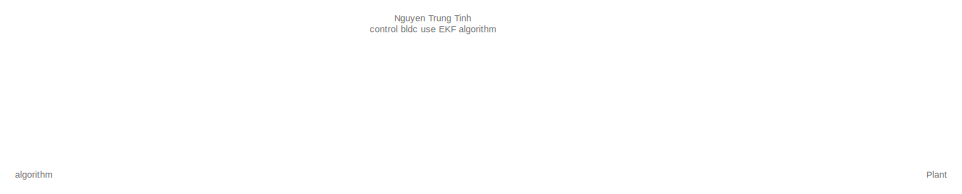
[diagram: root canvas - part 1/2, top left region]
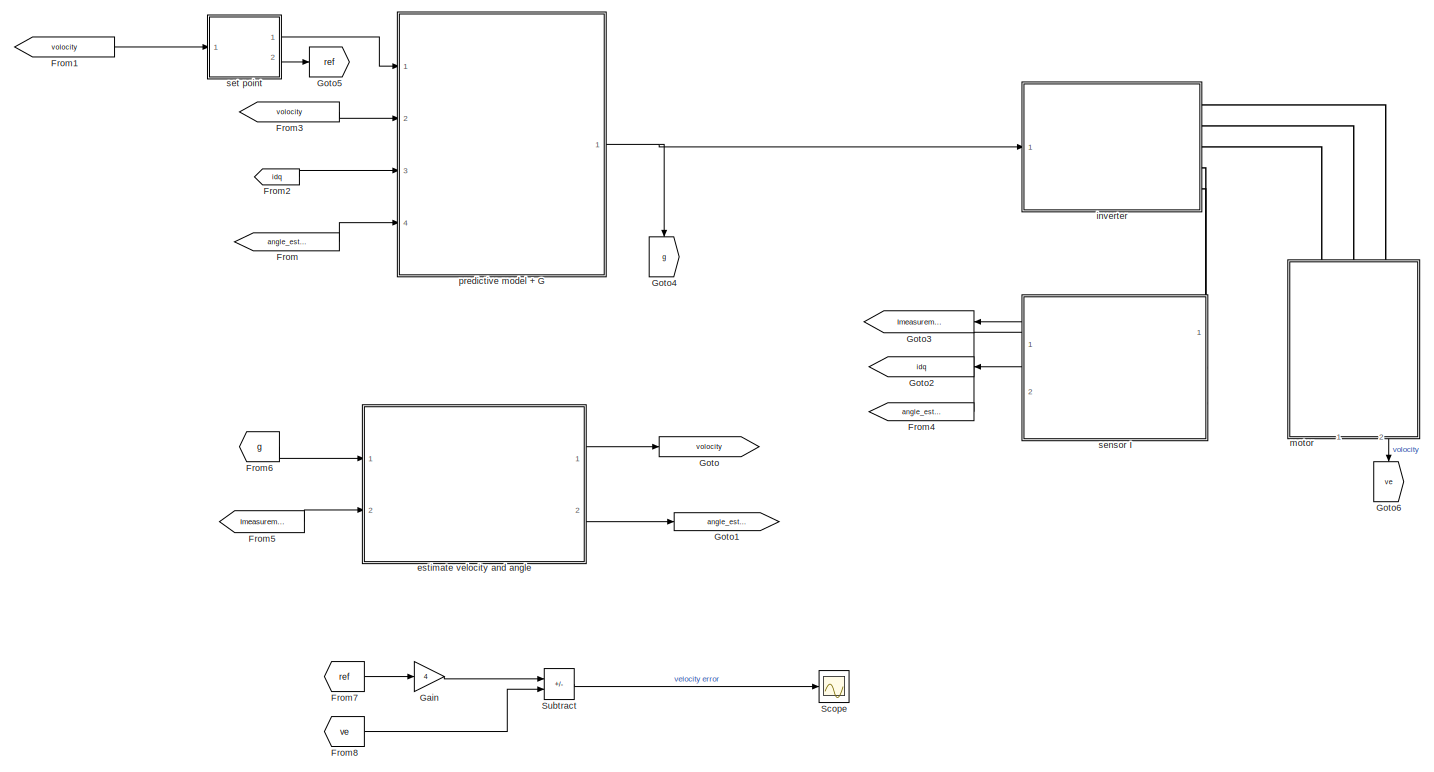
[diagram: root canvas - part 2/2, most of the canvas]
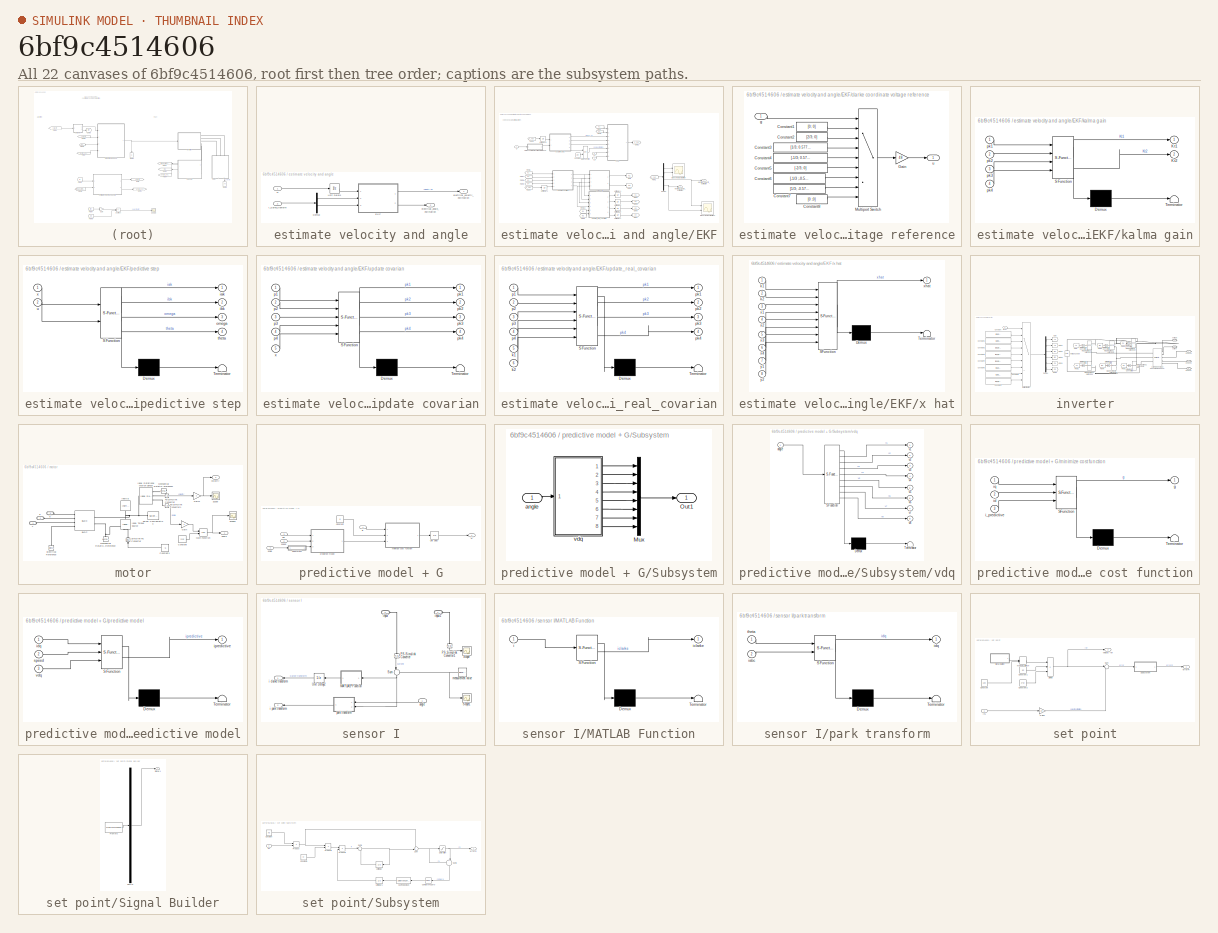
[diagram: thumbnail index - all 22 canvases of the model, root first then tree order]
MODEL slx_6bf9c4514606
KIND model
CONFIG AbsTol = auto
CONFIG EnableMultiTasking = off
CONFIG FixedStep = 50e-6
CONFIG MaxStep = auto
CONFIG MinStep = auto
CONFIG RelTol = 1e-3
CONFIG SampleTimeConstraint = Unconstrained
CONFIG Solver = FixedStepDiscrete
CONFIG SolverName = FixedStepDiscrete
CONFIG StartTime = 0.0
CONFIG StopTime = 10
BLOCK [From] From
  GotoTag = angle_estimate
BLOCK [From] From1
  GotoTag = volocity
BLOCK [From] From2
  GotoTag = idq
  NameLocation = top
BLOCK [From] From3
  GotoTag = volocity
BLOCK [From] From4
  GotoTag = angle_estimate
BLOCK [From] From5
  GotoTag = Imeasurement
  NameLocation = top
BLOCK [From] From6
  GotoTag = g
BLOCK [From] From7
  GotoTag = ref
BLOCK [From] From8
  GotoTag = ve
BLOCK [Gain] Gain
  Gain = 4
BLOCK [Goto] Goto
  GotoTag = volocity
BLOCK [Goto] Goto1
  GotoTag = angle_estimate
BLOCK [Goto] Goto2
  GotoTag = idq
  NameLocation = top
BLOCK [Goto] Goto3
  GotoTag = Imeasurement
  NameLocation = top
BLOCK [Goto] Goto4
  GotoTag = g
  NameLocation = left
BLOCK [Goto] Goto5
  GotoTag = ref
BLOCK [Goto] Goto6
  GotoTag = ve
  NameLocation = left
BLOCK [Scope] Scope
  Floating = off
  NumInputPorts = 1
  Ports = [1]
  ScopeSpecificationString = Simulink.scopes.TimeScopeBlockCfg('CurrentConfiguration', extmgr.ConfigurationSet(extmgr.Configuration('Core','General UI',true),extmgr.Configuration('Core','Source UI',true),extmgr.Configuration('Sources','WiredSimulink',true,'DataLoggingVariableName','ScopeData1'),extmgr.Configuration('Visuals','Time Domain',true),extmgr.Configuration('Tools','Plot Navigation',true),extmgr.Configuration('Tools',...<+40ch>
BLOCK [Sum] Subtract
  IconShape = rectangular
  Inputs = +-
  Ports = [2, 1]
BLOCK [SubSystem] estimate velocity and angle
  Ports = [2, 2]
  RequestExecContextInheritance = off
BLOCK [Demux] estimate velocity and angle/Demux
  Outputs = 2
  Ports = [1, 2]
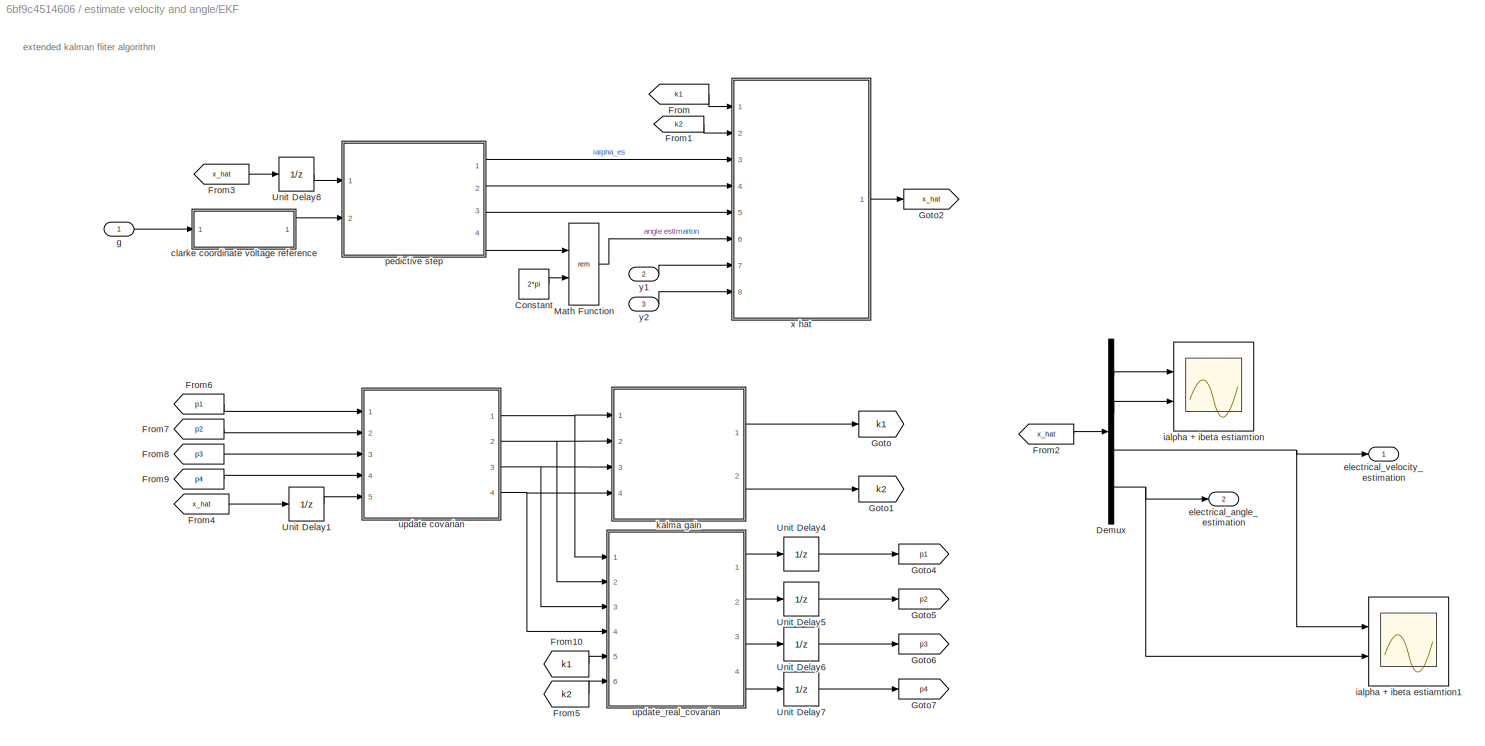
BLOCK [SubSystem] estimate velocity and angle/EKF
  Ports = [3, 2]
  RequestExecContextInheritance = off
BLOCK [Constant] estimate velocity and angle/EKF/Constant
  Value = 2*pi
BLOCK [Demux] estimate velocity and angle/EKF/Demux
  Ports = [1, 4]
BLOCK [From] estimate velocity and angle/EKF/From
  GotoTag = k1
BLOCK [From] estimate velocity and angle/EKF/From1
  GotoTag = k2
BLOCK [From] estimate velocity and angle/EKF/From10
  GotoTag = k1
BLOCK [From] estimate velocity and angle/EKF/From2
  GotoTag = x_hat
BLOCK [From] estimate velocity and angle/EKF/From3
  GotoTag = x_hat
BLOCK [From] estimate velocity and angle/EKF/From4
  GotoTag = x_hat
BLOCK [From] estimate velocity and angle/EKF/From5
  GotoTag = k2
BLOCK [From] estimate velocity and angle/EKF/From6
  GotoTag = p1
BLOCK [From] estimate velocity and angle/EKF/From7
  GotoTag = p2
BLOCK [From] estimate velocity and angle/EKF/From8
  GotoTag = p3
BLOCK [From] estimate velocity and angle/EKF/From9
  GotoTag = p4
BLOCK [Goto] estimate velocity and angle/EKF/Goto
  GotoTag = k1
BLOCK [Goto] estimate velocity and angle/EKF/Goto1
  GotoTag = k2
BLOCK [Goto] estimate velocity and angle/EKF/Goto2
  GotoTag = x_hat
BLOCK [Goto] estimate velocity and angle/EKF/Goto4
  GotoTag = p1
BLOCK [Goto] estimate velocity and angle/EKF/Goto5
  GotoTag = p2
BLOCK [Goto] estimate velocity and angle/EKF/Goto6
  GotoTag = p3
BLOCK [Goto] estimate velocity and angle/EKF/Goto7
  GotoTag = p4
BLOCK [Math] estimate velocity and angle/EKF/Math Function
  Operator = rem
  Ports = [2, 1]
BLOCK [UnitDelay] estimate velocity and angle/EKF/Unit Delay1
  HasFrameUpgradeWarning = on
  InitialCondition = [0 0 0 0]
  SampleTime = -1
BLOCK [UnitDelay] estimate velocity and angle/EKF/Unit Delay4
  HasFrameUpgradeWarning = on
  InitialCondition = [0.1;0;0;0]
  SampleTime = -1
BLOCK [UnitDelay] estimate velocity and angle/EKF/Unit Delay5
  HasFrameUpgradeWarning = on
  InitialCondition = [0; 0.2; 0; 0]
  SampleTime = -1
BLOCK [UnitDelay] estimate velocity and angle/EKF/Unit Delay6
  HasFrameUpgradeWarning = on
  InitialCondition = [0;0;0.5;0]
  SampleTime = -1
BLOCK [UnitDelay] estimate velocity and angle/EKF/Unit Delay7
  HasFrameUpgradeWarning = on
  InitialCondition = [0;0;0;0.02]
  SampleTime = -1
BLOCK [UnitDelay] estimate velocity and angle/EKF/Unit Delay8
  HasFrameUpgradeWarning = on
  InitialCondition = [0 0 0 0.01]
  SampleTime = -1
BLOCK [SubSystem] estimate velocity and angle/EKF/clarke coordinate voltage reference
  Ports = [1, 1]
  RequestExecContextInheritance = off
BLOCK [Constant] estimate velocity and angle/EKF/clarke coordinate voltage reference/Constant1
  Value = [0; 0]
BLOCK [Constant] estimate velocity and angle/EKF/clarke coordinate voltage reference/Constant2
  Value = [2/3; 0]
BLOCK [Constant] estimate velocity and angle/EKF/clarke coordinate voltage reference/Constant3
  Value = [1/3; 0.57735]
BLOCK [Constant] estimate velocity and angle/EKF/clarke coordinate voltage reference/Constant4
  Value = [-1/3; 0.57735]
BLOCK [Constant] estimate velocity and angle/EKF/clarke coordinate voltage reference/Constant5
  Value = [-2/3; 0]
BLOCK [Constant] estimate velocity and angle/EKF/clarke coordinate voltage reference/Constant6
  Value = [-1/3 ;-0.57735]
BLOCK [Constant] estimate velocity and angle/EKF/clarke coordinate voltage reference/Constant7
  Value = [1/3; -0.57735]
BLOCK [Constant] estimate velocity and angle/EKF/clarke coordinate voltage reference/Constant8
  Value = [0 ;0]
BLOCK [Gain] estimate velocity and angle/EKF/clarke coordinate voltage reference/Gain
  Gain = 48
BLOCK [MultiPortSwitch] estimate velocity and angle/EKF/clarke coordinate voltage reference/Multiport Switch
  InputSameDT = off
  Inputs = 8
  Ports = [9, 1]
  SaturateOnIntegerOverflow = off
BLOCK [Inport] estimate velocity and angle/EKF/clarke coordinate voltage reference/g
BLOCK [Outport] estimate velocity and angle/EKF/clarke coordinate voltage reference/u
BLOCK [Outport] estimate velocity and angle/EKF/electrical_angle_estimation
  Port = 2
BLOCK [Outport] estimate velocity and angle/EKF/electrical_velocity_estimation
BLOCK [Inport] estimate velocity and angle/EKF/g
BLOCK [Scope] estimate velocity and angle/EKF/ialpha + ibeta estiamtion
  Floating = off
  NumInputPorts = 2
  Ports = [2]
  ScopeSpecificationString = Simulink.scopes.TimeScopeBlockCfg('CurrentConfiguration', extmgr.ConfigurationSet(extmgr.Configuration('Core','General UI',true),extmgr.Configuration('Core','Source UI',true),extmgr.Configuration('Sources','WiredSimulink',true,'DataLoggingVariableName','ScopeData2'),extmgr.Configuration('Visuals','Time Domain',true,'SerializedDisplays',{struct('MinYLimReal','-2.81508','MaxYLimReal','2.16298','YLab...<+2176ch>
BLOCK [Scope] estimate velocity and angle/EKF/ialpha + ibeta estiamtion1
  Floating = off
  NumInputPorts = 2
  Ports = [2]
  ScopeSpecificationString = Simulink.scopes.TimeScopeBlockCfg('CurrentConfiguration', extmgr.ConfigurationSet(extmgr.Configuration('Core','General UI',true),extmgr.Configuration('Core','Source UI',true),extmgr.Configuration('Sources','WiredSimulink',true,'DataLoggingVariableName','ScopeData1'),extmgr.Configuration('Visuals','Time Domain',true,'SerializedDisplays',{struct('MinYLimReal','-96.57342','MaxYLimReal','869.1608','YL...<+2179ch>
BLOCK [SubSystem] estimate velocity and angle/EKF/kalma gain
  ErrorFcn = Stateflow.Translate.translate
  PermitHierarchicalResolution = ExplicitOnly
  Ports = [4, 2]
  RequestExecContextInheritance = off
  SFBlockType = MATLAB Function
  TreatAsAtomicUnit = on
BLOCK [Demux] estimate velocity and angle/EKF/kalma gain/ Demux 
  Outputs = 1
  Ports = [1, 1]
BLOCK [S-Function] estimate velocity and angle/EKF/kalma gain/ SFunction 
  EnableBusSupport = on
  FunctionName = sf_sfun
  PortCounts = [4 3]
  Ports = [4, 3]
  SFcnIsStateOwnerBlock = off
  SFunctionDeploymentMode = off
  Tag = Stateflow S-Function 6
BLOCK [Terminator] estimate velocity and angle/EKF/kalma gain/ Terminator 
BLOCK [Outport] estimate velocity and angle/EKF/kalma gain/Kt1
BLOCK [Outport] estimate velocity and angle/EKF/kalma gain/Kt2
  Port = 2
BLOCK [Inport] estimate velocity and angle/EKF/kalma gain/pk1
BLOCK [Inport] estimate velocity and angle/EKF/kalma gain/pk2
  Port = 2
BLOCK [Inport] estimate velocity and angle/EKF/kalma gain/pk3
  Port = 3
BLOCK [Inport] estimate velocity and angle/EKF/kalma gain/pk4
  Port = 4
BLOCK [SubSystem] estimate velocity and angle/EKF/pedictive step
  ErrorFcn = Stateflow.Translate.translate
  PermitHierarchicalResolution = ExplicitOnly
  Ports = [2, 4]
  RequestExecContextInheritance = off
  SFBlockType = MATLAB Function
  TreatAsAtomicUnit = on
BLOCK [Demux] estimate velocity and angle/EKF/pedictive step/ Demux 
  Outputs = 1
  Ports = [1, 1]
BLOCK [S-Function] estimate velocity and angle/EKF/pedictive step/ SFunction 
  EnableBusSupport = on
  FunctionName = sf_sfun
  PortCounts = [2 5]
  Ports = [2, 5]
  SFcnIsStateOwnerBlock = off
  SFunctionDeploymentMode = off
  Tag = Stateflow S-Function 7
BLOCK [Terminator] estimate velocity and angle/EKF/pedictive step/ Terminator 
BLOCK [Outport] estimate velocity and angle/EKF/pedictive step/iak
BLOCK [Outport] estimate velocity and angle/EKF/pedictive step/ibk
  Port = 2
BLOCK [Outport] estimate velocity and angle/EKF/pedictive step/omega
  Port = 3
BLOCK [Outport] estimate velocity and angle/EKF/pedictive step/theta
  Port = 4
BLOCK [Inport] estimate velocity and angle/EKF/pedictive step/u
  Port = 2
BLOCK [Inport] estimate velocity and angle/EKF/pedictive step/x
BLOCK [SubSystem] estimate velocity and angle/EKF/update covarian
  ErrorFcn = Stateflow.Translate.translate
  PermitHierarchicalResolution = ExplicitOnly
  Ports = [5, 4]
  RequestExecContextInheritance = off
  SFBlockType = MATLAB Function
  TreatAsAtomicUnit = on
BLOCK [Demux] estimate velocity and angle/EKF/update covarian/ Demux 
  Outputs = 1
  Ports = [1, 1]
BLOCK [S-Function] estimate velocity and angle/EKF/update covarian/ SFunction 
  EnableBusSupport = on
  FunctionName = sf_sfun
  PortCounts = [5 5]
  Ports = [5, 5]
  SFcnIsStateOwnerBlock = off
  SFunctionDeploymentMode = off
  Tag = Stateflow S-Function 5
BLOCK [Terminator] estimate velocity and angle/EKF/update covarian/ Terminator 
BLOCK [Inport] estimate velocity and angle/EKF/update covarian/p1
BLOCK [Inport] estimate velocity and angle/EKF/update covarian/p2
  Port = 2
BLOCK [Inport] estimate velocity and angle/EKF/update covarian/p3
  Port = 3
BLOCK [Inport] estimate velocity and angle/EKF/update covarian/p4
  Port = 4
BLOCK [Outport] estimate velocity and angle/EKF/update covarian/pk1
BLOCK [Outport] estimate velocity and angle/EKF/update covarian/pk2
  Port = 2
BLOCK [Outport] estimate velocity and angle/EKF/update covarian/pk3
  Port = 3
BLOCK [Outport] estimate velocity and angle/EKF/update covarian/pk4
  Port = 4
BLOCK [Inport] estimate velocity and angle/EKF/update covarian/x
  Port = 5
BLOCK [SubSystem] estimate velocity and angle/EKF/update_real_covarian
  ErrorFcn = Stateflow.Translate.translate
  PermitHierarchicalResolution = ExplicitOnly
  Ports = [6, 4]
  RequestExecContextInheritance = off
  SFBlockType = MATLAB Function
  TreatAsAtomicUnit = on
BLOCK [Demux] estimate velocity and angle/EKF/update_real_covarian/ Demux 
  Outputs = 1
  Ports = [1, 1]
BLOCK [S-Function] estimate velocity and angle/EKF/update_real_covarian/ SFunction 
  EnableBusSupport = on
  FunctionName = sf_sfun
  PortCounts = [6 5]
  Ports = [6, 5]
  SFcnIsStateOwnerBlock = off
  SFunctionDeploymentMode = off
  Tag = Stateflow S-Function 11
BLOCK [Terminator] estimate velocity and angle/EKF/update_real_covarian/ Terminator 
BLOCK [Inport] estimate velocity and angle/EKF/update_real_covarian/k1
  Port = 5
BLOCK [Inport] estimate velocity and angle/EKF/update_real_covarian/k2
  Port = 6
BLOCK [Inport] estimate velocity and angle/EKF/update_real_covarian/p1
BLOCK [Inport] estimate velocity and angle/EKF/update_real_covarian/p2
  Port = 2
BLOCK [Inport] estimate velocity and angle/EKF/update_real_covarian/p3
  Port = 3
BLOCK [Inport] estimate velocity and angle/EKF/update_real_covarian/p4
  Port = 4
BLOCK [Outport] estimate velocity and angle/EKF/update_real_covarian/pk1
BLOCK [Outport] estimate velocity and angle/EKF/update_real_covarian/pk2
  Port = 2
BLOCK [Outport] estimate velocity and angle/EKF/update_real_covarian/pk3
  Port = 3
BLOCK [Outport] estimate velocity and angle/EKF/update_real_covarian/pk4
  Port = 4
BLOCK [SubSystem] estimate velocity and angle/EKF/x hat
  ErrorFcn = Stateflow.Translate.translate
  PermitHierarchicalResolution = ExplicitOnly
  Ports = [8, 1]
  RequestExecContextInheritance = off
  SFBlockType = MATLAB Function
  TreatAsAtomicUnit = on
BLOCK [Demux] estimate velocity and angle/EKF/x hat/ Demux 
  Outputs = 1
  Ports = [1, 1]
BLOCK [S-Function] estimate velocity and angle/EKF/x hat/ SFunction 
  EnableBusSupport = on
  FunctionName = sf_sfun
  PortCounts = [8 2]
  Ports = [8, 2]
  SFcnIsStateOwnerBlock = off
  SFunctionDeploymentMode = off
  Tag = Stateflow S-Function 8
BLOCK [Terminator] estimate velocity and angle/EKF/x hat/ Terminator 
BLOCK [Inport] estimate velocity and angle/EKF/x hat/k1
BLOCK [Inport] estimate velocity and angle/EKF/x hat/k2
  Port = 2
BLOCK [Inport] estimate velocity and angle/EKF/x hat/x1
  Port = 3
BLOCK [Inport] estimate velocity and angle/EKF/x hat/x2
  Port = 4
BLOCK [Inport] estimate velocity and angle/EKF/x hat/x3
  Port = 5
BLOCK [Inport] estimate velocity and angle/EKF/x hat/x4
  Port = 6
BLOCK [Outport] estimate velocity and angle/EKF/x hat/xhat
BLOCK [Inport] estimate velocity and angle/EKF/x hat/y1
  Port = 7
BLOCK [Inport] estimate velocity and angle/EKF/x hat/y2
  Port = 8
BLOCK [Inport] estimate velocity and angle/EKF/y1
  Port = 2
BLOCK [Inport] estimate velocity and angle/EKF/y2
  Port = 3
BLOCK [Inport] estimate velocity and angle/G
BLOCK [UnitDelay] estimate velocity and angle/Unit Delay1
  HasFrameUpgradeWarning = on
  InitialCondition = 1
  SampleTime = -1
BLOCK [Outport] estimate velocity and angle/electrical_angle_estimation
  Port = 2
BLOCK [Outport] estimate velocity and angle/electrical_velocity_estimation
BLOCK [Inport] estimate velocity and angle/i_clarke_tranform
  Port = 2
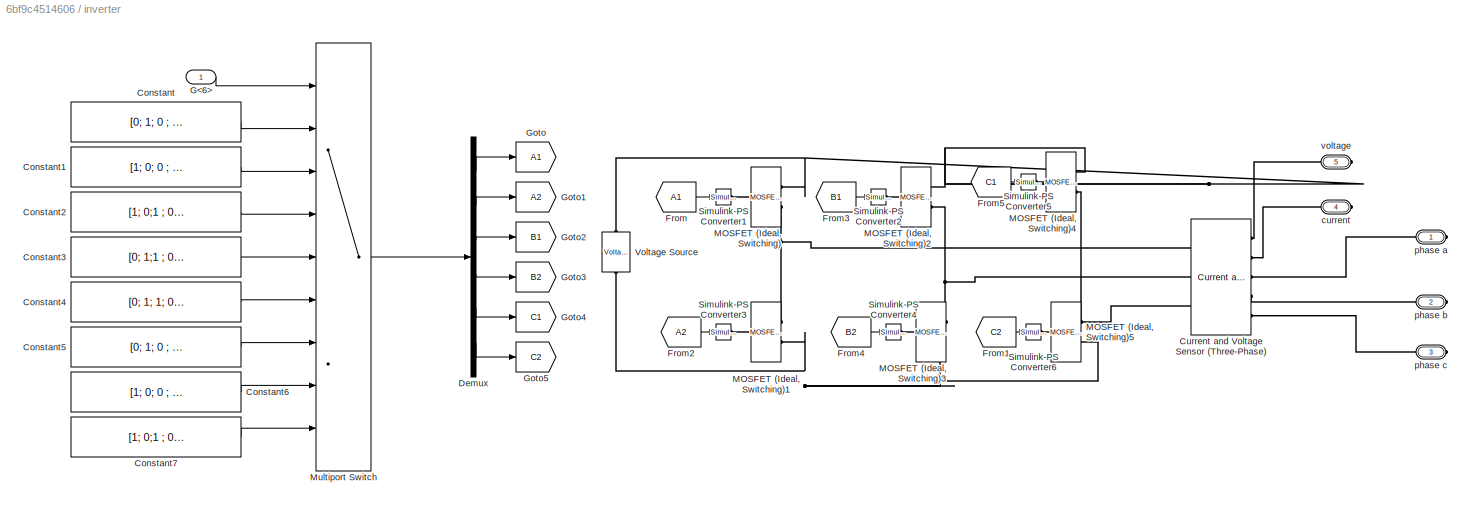
BLOCK [SubSystem] inverter
  PortSchema = {"entries":[{"content":{"sides":[{"content":{"connectorIds":["In1"]},"type":"ConnectorPlacement.EquallySpacedRectSide","uuid":"9f8e1654-e76f-4ccd-87ff-712360a9448c"},{"content":{"connectorIds":["RConn1","RConn2","RConn3"],"side":"RIGHT"},"type":"ConnectorPlacement.EquallySpacedRectSide","uuid":"1603b82b-d8dc-4962-8b2e-607a69af6851"},{"content":{"connectorIds":[],"side":"TOP"},"type":"ConnectorPlac...<+423ch>
  Ports = [1, 0, 0, 0, 0, 0, 5]
  RequestExecContextInheritance = off
BLOCK [Constant] inverter/Constant
  Value = [0; 1; 0 ; 1; 0; 1]
BLOCK [Constant] inverter/Constant1
  Value = [1; 0; 0 ; 1; 0; 1]
BLOCK [Constant] inverter/Constant2
  Value = [1; 0;1 ; 0; 0; 1]
BLOCK [Constant] inverter/Constant3
  Value = [0; 1;1 ; 0; 0; 1]
BLOCK [Constant] inverter/Constant4
  Value = [0; 1; 1; 0; 1; 0]
BLOCK [Constant] inverter/Constant5
  Value = [0; 1; 0 ; 1; 1; 0]
BLOCK [Constant] inverter/Constant6
  Value = [1; 0; 0 ; 1; 1; 0]
BLOCK [Constant] inverter/Constant7
  Value = [1; 0;1 ; 0; 1; 0]
BLOCK [Reference] inverter/Current and Voltage Sensor (Three-Phase)  REF=ee_lib/Sensors &
Transducers/Current and Voltage
Sensor (Three-Phase)
  Ports = [0, 0, 0, 0, 0, 3, 5]
  SourceBlock = ee_lib/Sensors &\nTransducers/Current and Voltage\nSensor (Three-Phase)
  SourceProductBaseCode = PS
  SourceType = Current and Voltage\nSensor (Three-Phase)
BLOCK [Demux] inverter/Demux
  Outputs = 6
  Ports = [1, 6]
BLOCK [From] inverter/From
  GotoTag = A1
BLOCK [From] inverter/From1
  GotoTag = C2
BLOCK [From] inverter/From2
  GotoTag = A2
BLOCK [From] inverter/From3
  GotoTag = B1
BLOCK [From] inverter/From4
  GotoTag = B2
BLOCK [From] inverter/From5
  GotoTag = C1
BLOCK [Inport] inverter/G<6>
BLOCK [Goto] inverter/Goto
  GotoTag = A1
BLOCK [Goto] inverter/Goto1
  GotoTag = A2
BLOCK [Goto] inverter/Goto2
  GotoTag = B1
BLOCK [Goto] inverter/Goto3
  GotoTag = B2
BLOCK [Goto] inverter/Goto4
  GotoTag = C1
BLOCK [Goto] inverter/Goto5
  GotoTag = C2
BLOCK [Reference] inverter/MOSFET (Ideal, Switching)  REF=ee_lib/Semiconductors &
Converters/MOSFET
(Ideal,
Switching)
  Ports = [0, 0, 0, 0, 0, 1, 2]
  SourceBlock = ee_lib/Semiconductors &\nConverters/MOSFET\n(Ideal,\nSwitching)
  SourceProductBaseCode = PS
  SourceType = MOSFET\n(Ideal,\nSwitching)
BLOCK [Reference] inverter/MOSFET (Ideal, Switching)1  REF=ee_lib/Semiconductors &
Converters/MOSFET
(Ideal,
Switching)
  Ports = [0, 0, 0, 0, 0, 1, 2]
  SourceBlock = ee_lib/Semiconductors &\nConverters/MOSFET\n(Ideal,\nSwitching)
  SourceProductBaseCode = PS
  SourceType = MOSFET\n(Ideal,\nSwitching)
BLOCK [Reference] inverter/MOSFET (Ideal, Switching)2  REF=ee_lib/Semiconductors &
Converters/MOSFET
(Ideal,
Switching)
  Ports = [0, 0, 0, 0, 0, 1, 2]
  SourceBlock = ee_lib/Semiconductors &\nConverters/MOSFET\n(Ideal,\nSwitching)
  SourceProductBaseCode = PS
  SourceType = MOSFET\n(Ideal,\nSwitching)
BLOCK [Reference] inverter/MOSFET (Ideal, Switching)3  REF=ee_lib/Semiconductors &
Converters/MOSFET
(Ideal,
Switching)
  Ports = [0, 0, 0, 0, 0, 1, 2]
  SourceBlock = ee_lib/Semiconductors &\nConverters/MOSFET\n(Ideal,\nSwitching)
  SourceProductBaseCode = PS
  SourceType = MOSFET\n(Ideal,\nSwitching)
BLOCK [Reference] inverter/MOSFET (Ideal, Switching)4  REF=ee_lib/Semiconductors &
Converters/MOSFET
(Ideal,
Switching)
  Ports = [0, 0, 0, 0, 0, 1, 2]
  SourceBlock = ee_lib/Semiconductors &\nConverters/MOSFET\n(Ideal,\nSwitching)
  SourceProductBaseCode = PS
  SourceType = MOSFET\n(Ideal,\nSwitching)
BLOCK [Reference] inverter/MOSFET (Ideal, Switching)5  REF=ee_lib/Semiconductors &
Converters/MOSFET
(Ideal,
Switching)
  Ports = [0, 0, 0, 0, 0, 1, 2]
  SourceBlock = ee_lib/Semiconductors &\nConverters/MOSFET\n(Ideal,\nSwitching)
  SourceProductBaseCode = PS
  SourceType = MOSFET\n(Ideal,\nSwitching)
BLOCK [MultiPortSwitch] inverter/Multiport Switch
  InputSameDT = off
  Inputs = 8
  Ports = [9, 1]
  SaturateOnIntegerOverflow = off
BLOCK [Reference] inverter/Simulink-PS Converter1  REF=nesl_utility/Simulink-PS
Converter
  Ports = [1, 0, 0, 0, 0, 0, 1]
  SourceBlock = nesl_utility/Simulink-PS\nConverter
  SourceProductBaseCode = SS
  SourceType = Simulink-PS\nConverter
BLOCK [Reference] inverter/Simulink-PS Converter2  REF=nesl_utility/Simulink-PS
Converter
  Ports = [1, 0, 0, 0, 0, 0, 1]
  SourceBlock = nesl_utility/Simulink-PS\nConverter
  SourceProductBaseCode = SS
  SourceType = Simulink-PS\nConverter
BLOCK [Reference] inverter/Simulink-PS Converter3  REF=nesl_utility/Simulink-PS
Converter
  Ports = [1, 0, 0, 0, 0, 0, 1]
  SourceBlock = nesl_utility/Simulink-PS\nConverter
  SourceProductBaseCode = SS
  SourceType = Simulink-PS\nConverter
BLOCK [Reference] inverter/Simulink-PS Converter4  REF=nesl_utility/Simulink-PS
Converter
  Ports = [1, 0, 0, 0, 0, 0, 1]
  SourceBlock = nesl_utility/Simulink-PS\nConverter
  SourceProductBaseCode = SS
  SourceType = Simulink-PS\nConverter
BLOCK [Reference] inverter/Simulink-PS Converter5  REF=nesl_utility/Simulink-PS
Converter
  Ports = [1, 0, 0, 0, 0, 0, 1]
  SourceBlock = nesl_utility/Simulink-PS\nConverter
  SourceProductBaseCode = SS
  SourceType = Simulink-PS\nConverter
BLOCK [Reference] inverter/Simulink-PS Converter6  REF=nesl_utility/Simulink-PS
Converter
  Ports = [1, 0, 0, 0, 0, 0, 1]
  SourceBlock = nesl_utility/Simulink-PS\nConverter
  SourceProductBaseCode = SS
  SourceType = Simulink-PS\nConverter
BLOCK [Reference] inverter/Voltage Source  REF=ee_lib/Sources/Voltage Source
  NameLocation = right
  Ports = [0, 0, 0, 0, 0, 1, 1]
  SourceBlock = ee_lib/Sources/Voltage Source
  SourceProductBaseCode = PS
  SourceType = Voltage Source
BLOCK [PMIOPort] inverter/current
  Port = 4
  Side = Right
BLOCK [PMIOPort] inverter/phase a
  Side = Right
BLOCK [PMIOPort] inverter/phase b
  Port = 2
  Side = Right
BLOCK [PMIOPort] inverter/phase c
  Port = 3
  Side = Right
BLOCK [PMIOPort] inverter/voltage
  Port = 5
  Side = Right
BLOCK [SubSystem] motor
  NameLocation = left
  Ports = [0, 2, 0, 0, 0, 3]
  RequestExecContextInheritance = off
BLOCK [Reference] motor/BLDC  REF=ee_lib/Electromechanical/Permanent Magnet/BLDC
  Ports = [0, 0, 0, 0, 0, 4, 2]
  SourceBlock = ee_lib/Electromechanical/Permanent Magnet/BLDC
  SourceProductBaseCode = PS
  SourceType = BLDC
BLOCK [Constant] motor/Constant
  Value = 2*pi
BLOCK [Constant] motor/Constant1
  NameLocation = top
  Value = -5
BLOCK [Reference] motor/Electrical Reference  REF=fl_lib/Electrical/Electrical Elements/Electrical Reference
  NameLocation = right
  Ports = [0, 0, 0, 0, 0, 1]
  SourceBlock = fl_lib/Electrical/Electrical Elements/Electrical Reference
  SourceProductBaseCode = SS
  SourceType = Electrical Reference
BLOCK [Gain] motor/Gain
  Gain = 4
BLOCK [Gain] motor/Gain1
  Gain = 4
BLOCK [Reference] motor/Ideal Rotational Motion Sensor  REF=fl_lib/Mechanical/Mechanical Sensors/Ideal Rotational
Motion Sensor
  Ports = [0, 0, 0, 0, 0, 1, 3]
  SourceBlock = fl_lib/Mechanical/Mechanical Sensors/Ideal Rotational\nMotion Sensor
  SourceProductBaseCode = SS
  SourceType = Ideal Rotational\nMotion Sensor
BLOCK [Reference] motor/Ideal Torque Source  REF=fl_lib/Mechanical/Mechanical Sources/Ideal Torque Source
  NameLocation = right
  Ports = [0, 0, 0, 0, 0, 1, 2]
  SourceBlock = fl_lib/Mechanical/Mechanical Sources/Ideal Torque Source
  SourceProductBaseCode = SS
  SourceType = Ideal Torque Source
BLOCK [Reference] motor/Inertia  REF=fl_lib/Mechanical/Rotational Elements/Inertia
  NameLocation = left
  Ports = [0, 0, 0, 0, 0, 1]
  SourceBlock = fl_lib/Mechanical/Rotational Elements/Inertia
  SourceProductBaseCode = SS
  SourceType = Inertia
BLOCK [Math] motor/Math Function
  Operator = rem
  Ports = [2, 1]
BLOCK [Reference] motor/Mechanical Rotational Reference  REF=fl_lib/Mechanical/Rotational Elements/Mechanical
Rotational Reference
  NameLocation = right
  Ports = [0, 0, 0, 0, 0, 1]
  SourceBlock = fl_lib/Mechanical/Rotational Elements/Mechanical\nRotational Reference
  SourceProductBaseCode = SS
  SourceType = Mechanical\nRotational Reference
BLOCK [Reference] motor/Mechanical Rotational Reference1  REF=fl_lib/Mechanical/Rotational Elements/Mechanical
Rotational Reference
  NameLocation = top
  Ports = [0, 0, 0, 0, 0, 1]
  SourceBlock = fl_lib/Mechanical/Rotational Elements/Mechanical\nRotational Reference
  SourceProductBaseCode = SS
  SourceType = Mechanical\nRotational Reference
BLOCK [Reference] motor/PS-Simulink Converter  REF=nesl_utility/PS-Simulink
Converter
  Ports = [0, 1, 0, 0, 0, 1]
  SourceBlock = nesl_utility/PS-Simulink\nConverter
  SourceProductBaseCode = SS
  SourceType = PS-Simulink\nConverter
BLOCK [Reference] motor/PS-Simulink Converter1  REF=nesl_utility/PS-Simulink
Converter
  Ports = [0, 1, 0, 0, 0, 1]
  SourceBlock = nesl_utility/PS-Simulink\nConverter
  SourceProductBaseCode = SS
  SourceType = PS-Simulink\nConverter
BLOCK [Scope] motor/Scope
  Floating = off
  NumInputPorts = 1
  Ports = [1]
  ScopeSpecificationString = Simulink.scopes.TimeScopeBlockCfg('CurrentConfiguration', extmgr.ConfigurationSet(extmgr.Configuration('Core','General UI',true,'FigureColor',[1 1 1]),extmgr.Configuration('Core','Source UI',true),extmgr.Configuration('Sources','WiredSimulink',true),extmgr.Configuration('Visuals','Time Domain',true,'SerializedDisplays',{struct('MinYLimReal','-111.59014','MaxYLimReal','50.54235','YLabelReal','','Mi...<+1530ch>
BLOCK [Scope] motor/Scope1
  Floating = off
  NumInputPorts = 1
  Ports = [1]
  ScopeSpecificationString = Simulink.scopes.TimeScopeBlockCfg('CurrentConfiguration', extmgr.ConfigurationSet(extmgr.Configuration('Core','General UI',true,'FigureColor',[1 1 1]),extmgr.Configuration('Core','Source UI',true),extmgr.Configuration('Sources','WiredSimulink',true,'DataLoggingVariableName','ScopeData1'),extmgr.Configuration('Visuals','Time Domain',true,'SerializedDisplays',{struct('MinYLimReal','-0.78545','MaxYLi...<+1565ch>
BLOCK [Reference] motor/Simulink-PS Converter  REF=nesl_utility/Simulink-PS
Converter
  NameLocation = right
  Ports = [1, 0, 0, 0, 0, 0, 1]
  SourceBlock = nesl_utility/Simulink-PS\nConverter
  SourceProductBaseCode = SS
  SourceType = Simulink-PS\nConverter
BLOCK [Reference] motor/Solver Configuration  REF=nesl_utility/Solver
Configuration
  NameLocation = top
  Ports = [0, 0, 0, 0, 0, 0, 1]
  SourceBlock = nesl_utility/Solver\nConfiguration
  SourceProductBaseCode = SS
  SourceType = Solver\nConfiguration
BLOCK [PMIOPort] motor/a
  Port = 3
  Side = Left
BLOCK [Outport] motor/angle
BLOCK [PMIOPort] motor/b
  Port = 2
  Side = Left
BLOCK [PMIOPort] motor/c
  Side = Left
BLOCK [Outport] motor/volocity
  Port = 2
BLOCK [SubSystem] predictive model + G
  Ports = [4, 1]
  RequestExecContextInheritance = off
BLOCK [Constant] predictive model + G/Constant
  Value = 0
BLOCK [Outport] predictive model + G/G
BLOCK [SubSystem] predictive model + G/Subsystem
  Ports = [1, 1]
  RequestExecContextInheritance = off
BLOCK [Mux] predictive model + G/Subsystem/Mux
  DisplayOption = bar
  Inputs = 8
  Ports = [8, 1]
BLOCK [Outport] predictive model + G/Subsystem/Out1
BLOCK [Inport] predictive model + G/Subsystem/angle
BLOCK [SubSystem] predictive model + G/Subsystem/vdq
  ErrorFcn = Stateflow.Translate.translate
  PermitHierarchicalResolution = ExplicitOnly
  Ports = [1, 8]
  RequestExecContextInheritance = off
  SFBlockType = MATLAB Function
  TreatAsAtomicUnit = on
BLOCK [Demux] predictive model + G/Subsystem/vdq/ Demux 
  Outputs = 1
  Ports = [1, 1]
BLOCK [S-Function] predictive model + G/Subsystem/vdq/ SFunction 
  EnableBusSupport = on
  FunctionName = sf_sfun
  PortCounts = [1 9]
  Ports = [1, 9]
  SFcnIsStateOwnerBlock = off
  SFunctionDeploymentMode = off
  Tag = Stateflow S-Function 9
BLOCK [Terminator] predictive model + G/Subsystem/vdq/ Terminator 
BLOCK [Inport] predictive model + G/Subsystem/vdq/angle
BLOCK [Outport] predictive model + G/Subsystem/vdq/v1
BLOCK [Outport] predictive model + G/Subsystem/vdq/v2
  Port = 2
BLOCK [Outport] predictive model + G/Subsystem/vdq/v3
  Port = 3
BLOCK [Outport] predictive model + G/Subsystem/vdq/v4
  Port = 4
BLOCK [Outport] predictive model + G/Subsystem/vdq/v5
  Port = 5
BLOCK [Outport] predictive model + G/Subsystem/vdq/v6
  Port = 6
BLOCK [Outport] predictive model + G/Subsystem/vdq/v7
  Port = 7
BLOCK [Outport] predictive model + G/Subsystem/vdq/v8
  Port = 8
BLOCK [UnitDelay] predictive model + G/Unit Delay
  HasFrameUpgradeWarning = on
  InitialCondition = 1
  SampleTime = -1
BLOCK [Inport] predictive model + G/angle
  Port = 4
BLOCK [Inport] predictive model + G/idq
  Port = 3
BLOCK [Inport] predictive model + G/iq
BLOCK [SubSystem] predictive model + G/minimize cost function
  ErrorFcn = Stateflow.Translate.translate
  PermitHierarchicalResolution = ExplicitOnly
  Ports = [3, 1]
  RequestExecContextInheritance = off
  SFBlockType = MATLAB Function
  TreatAsAtomicUnit = on
BLOCK [Demux] predictive model + G/minimize cost function/ Demux 
  Outputs = 1
  Ports = [1, 1]
BLOCK [S-Function] predictive model + G/minimize cost function/ SFunction 
  EnableBusSupport = on
  FunctionName = sf_sfun
  PortCounts = [3 2]
  Ports = [3, 2]
  SFcnIsStateOwnerBlock = off
  SFunctionDeploymentMode = off
  Tag = Stateflow S-Function 2
BLOCK [Terminator] predictive model + G/minimize cost function/ Terminator 
BLOCK [Outport] predictive model + G/minimize cost function/g
BLOCK [Inport] predictive model + G/minimize cost function/i_predictive
  Port = 3
BLOCK [Inport] predictive model + G/minimize cost function/id
  Port = 2
BLOCK [Inport] predictive model + G/minimize cost function/iq
BLOCK [SubSystem] predictive model + G/predictive model
  ErrorFcn = Stateflow.Translate.translate
  PermitHierarchicalResolution = ExplicitOnly
  Ports = [3, 1]
  RequestExecContextInheritance = off
  SFBlockType = MATLAB Function
  TreatAsAtomicUnit = on
BLOCK [Demux] predictive model + G/predictive model/ Demux 
  Outputs = 1
  Ports = [1, 1]
BLOCK [S-Function] predictive model + G/predictive model/ SFunction 
  EnableBusSupport = on
  FunctionName = sf_sfun
  PortCounts = [3 2]
  Ports = [3, 2]
  SFcnIsStateOwnerBlock = off
  SFunctionDeploymentMode = off
  Tag = Stateflow S-Function 1
BLOCK [Terminator] predictive model + G/predictive model/ Terminator 
BLOCK [Inport] predictive model + G/predictive model/idq
BLOCK [Outport] predictive model + G/predictive model/ipredictive
BLOCK [Inport] predictive model + G/predictive model/speed
  Port = 2
BLOCK [Inport] predictive model + G/predictive model/vdq
  Port = 3
BLOCK [Inport] predictive model + G/speed
  Port = 2
BLOCK [SubSystem] sensor I
  PortSchema = {"entries":[{"content":{"sides":[{"content":{"connectorIds":[]},"type":"ConnectorPlacement.EquallySpacedRectSide","uuid":"0a592258-b95b-4330-8c63-2a9e4347ecac"},{"content":{"connectorIds":["Out1","Out2","In1"],"side":"RIGHT"},"type":"ConnectorPlacement.EquallySpacedRectSide","uuid":"44663962-0eca-4dc4-9145-5c0dbec9ec3a"},{"content":{"connectorIds":["LConn1","LConn2"],"side":"TOP"},"type":"Connecto...<+267ch>
  Ports = [1, 2, 0, 0, 0, 2]
  RequestExecContextInheritance = off
BLOCK [Outport] sensor I/ i clarke transform
  NameLocation = left
BLOCK [SubSystem] sensor I/MATLAB Function
  ErrorFcn = Stateflow.Translate.translate
  NameLocation = top
  PermitHierarchicalResolution = ExplicitOnly
  Ports = [1, 1]
  RequestExecContextInheritance = off
  SFBlockType = MATLAB Function
  TreatAsAtomicUnit = on
BLOCK [Demux] sensor I/MATLAB Function/ Demux 
  Outputs = 1
  Ports = [1, 1]
BLOCK [S-Function] sensor I/MATLAB Function/ SFunction 
  EnableBusSupport = on
  FunctionName = sf_sfun
  PortCounts = [1 2]
  Ports = [1, 2]
  SFcnIsStateOwnerBlock = off
  SFunctionDeploymentMode = off
  Tag = Stateflow S-Function 12
BLOCK [Terminator] sensor I/MATLAB Function/ Terminator 
BLOCK [Inport] sensor I/MATLAB Function/i
BLOCK [Outport] sensor I/MATLAB Function/iclarke
BLOCK [Reference] sensor I/PS-Simulink Converter  REF=nesl_utility/PS-Simulink
Converter
  NameLocation = left
  Ports = [0, 1, 0, 0, 0, 1]
  SourceBlock = nesl_utility/PS-Simulink\nConverter
  SourceProductBaseCode = SS
  SourceType = PS-Simulink\nConverter
BLOCK [Reference] sensor I/PS-Simulink Converter1  REF=nesl_utility/PS-Simulink
Converter
  NameLocation = left
  Ports = [0, 1, 0, 0, 0, 1]
  SourceBlock = nesl_utility/PS-Simulink\nConverter
  SourceProductBaseCode = SS
  SourceType = PS-Simulink\nConverter
BLOCK [Scope] sensor I/Scope
  Floating = off
  NumInputPorts = 1
  Ports = [1]
  ScopeSpecificationString = Simulink.scopes.TimeScopeBlockCfg('CurrentConfiguration', extmgr.ConfigurationSet(extmgr.Configuration('Core','General UI',true),extmgr.Configuration('Core','Source UI',true),extmgr.Configuration('Sources','WiredSimulink',true,'DataLoggingVariableName','ScopeData1'),extmgr.Configuration('Visuals','Time Domain',true,'SerializedDisplays',{struct('MinYLimReal','-0.00000000000000026','MaxYLimReal','0....<+1614ch>
BLOCK [Scope] sensor I/Scope1
  Floating = off
  NumInputPorts = 1
  Ports = [1]
  ScopeSpecificationString = Simulink.scopes.TimeScopeBlockCfg('CurrentConfiguration', extmgr.ConfigurationSet(extmgr.Configuration('Core','General UI',true),extmgr.Configuration('Core','Source UI',true),extmgr.Configuration('Sources','WiredSimulink',true,'DataLoggingVariableName','ScopeData1'),extmgr.Configuration('Visuals','Time Domain',true,'SerializedDisplays',{struct('MinYLimReal','-0.55947','MaxYLimReal','0.55079','YLab...<+1449ch>
BLOCK [Sum] sensor I/Sum
  Inputs = |++
  NameLocation = left
  Ports = [2, 1]
BLOCK [UnitDelay] sensor I/Unit Delay2
  HasFrameUpgradeWarning = on
  NameLocation = top
  SampleTime = -1
BLOCK [Inport] sensor I/angle
  NameLocation = top
BLOCK [Outport] sensor I/i park transform
  Port = 2
BLOCK [PMIOPort] sensor I/input
  Port = 2
  Side = Left
BLOCK [PMIOPort] sensor I/input1
  Side = Left
BLOCK [Reference] sensor I/measurement noise  REF=simulink/Sources/Band-Limited
White Noise
  NameLocation = top
  Ports = [0, 1]
  SourceBlock = simulink/Sources/Band-Limited\nWhite Noise
  SourceProductBaseCode = SL
  SourceType = Band-Limited White Noise.
BLOCK [SubSystem] sensor I/park transform
  ErrorFcn = Stateflow.Translate.translate
  NameLocation = top
  PermitHierarchicalResolution = ExplicitOnly
  Ports = [2, 1]
  RequestExecContextInheritance = off
  SFBlockType = MATLAB Function
  TreatAsAtomicUnit = on
BLOCK [Demux] sensor I/park transform/ Demux 
  Outputs = 1
  Ports = [1, 1]
BLOCK [S-Function] sensor I/park transform/ SFunction 
  EnableBusSupport = on
  FunctionName = sf_sfun
  PortCounts = [2 2]
  Ports = [2, 2]
  SFcnIsStateOwnerBlock = off
  SFunctionDeploymentMode = off
  Tag = Stateflow S-Function 4
BLOCK [Terminator] sensor I/park transform/ Terminator 
BLOCK [Inport] sensor I/park transform/iabc
  Port = 2
BLOCK [Outport] sensor I/park transform/idq
BLOCK [Inport] sensor I/park transform/theta
BLOCK [SubSystem] set point
  Ports = [1, 2]
  RequestExecContextInheritance = off
BLOCK [Constant] set point/Constant
  Value = 100
BLOCK [Constant] set point/Constant1
  Value = 60
BLOCK [Constant] set point/Constant2
  Value = 2*pi
BLOCK [Product] set point/Divide
  Inputs = */*
  Ports = [3, 1]
BLOCK [Gain] set point/Gain1
  Gain = 1/4
BLOCK [Inport] set point/In1
BLOCK [ManualSwitch] set point/Manual Switch
BLOCK [SubSystem] set point/Signal Builder
  ClipboardFcn = sigbuilder_block('clipboard');
  CloseFcn = sigbuilder_block('close');
  ContinueFcn = sigbuilder_block('continue');
  CopyFcn = sigbuilder_block('copy');
  DeleteFcn = sigbuilder_block('delete');
  LoadFcn = sigbuilder_block('load');
  MaskHideContents = on
  ModelCloseFcn = sigbuilder_block('modelClose');
  NameChangeFcn = sigbuilder_block('namechange');
  OpenFcn = sigbuilder_block('open',[5.4 30 1141.2 522.6 ]);
  PauseFcn = sigbuilder_block('pause');
  Ports = [0, 1]
  PreSaveFcn = sigbuilder_block('preSave');
  RequestExecContextInheritance = off
  StartFcn = sigbuilder_block('start');
  StopFcn = sigbuilder_block('stop');
  Tag = STV Subsys
BLOCK [Demux] set point/Signal Builder/Demux
  DisplayOption = none
  Outputs = 1
  Ports = [1, 1]
  Tag = STV Demux
BLOCK [FromWorkspace] set point/Signal Builder/FromWs
  Tag = STV FromWs
  VariableName = tuvar
BLOCK [Outport] set point/Signal Builder/Signal 1
  Tag = STV Outport
BLOCK [SubSystem] set point/Subsystem
  Ports = [1, 1]
  RequestExecContextInheritance = off
BLOCK [DataTypeConversion] set point/Subsystem/Cast To Boolean
  NameLocation = top
  OutDataTypeStr = double
  RndMeth = Floor
  SaturateOnIntegerOverflow = off
BLOCK [Reference] set point/Subsystem/Compare To Zero  REF=simulink/Logic and Bit
Operations/Compare
To Zero
  NameLocation = top
  Ports = [1, 1]
  SourceBlock = simulink/Logic and Bit\nOperations/Compare\nTo Zero
  SourceProductBaseCode = SL
  SourceType = Compare To Zero
BLOCK [Constant] set point/Subsystem/Constant
  Value = Kp
BLOCK [Constant] set point/Subsystem/Constant1
  Value = Ki
BLOCK [Inport] set point/Subsystem/In1
BLOCK [Product] set point/Subsystem/Product
  Ports = [2, 1]
BLOCK [Product] set point/Subsystem/Product1
  Ports = [2, 1]
BLOCK [Product] set point/Subsystem/Product2
  Ports = [2, 1]
BLOCK [Saturate] set point/Subsystem/Saturation
  LinearizeAsGain = off
  LowerLimit = -10
  UpperLimit = 10
BLOCK [Sum] set point/Subsystem/Sum
  Inputs = ++|
  Ports = [2, 1]
BLOCK [Sum] set point/Subsystem/Sum1
  Inputs = |++
  Ports = [2, 1]
BLOCK [Sum] set point/Subsystem/Sum2
  Inputs = +-|
  NameLocation = left
  Ports = [2, 1]
BLOCK [UnitDelay] set point/Subsystem/Unit Delay
  HasFrameUpgradeWarning = on
  NameLocation = top
  SampleTime = -1
BLOCK [UnitDelay] set point/Subsystem/Unit Delay1
  HasFrameUpgradeWarning = on
  InitialCondition = 1
  NameLocation = top
  SampleTime = -1
BLOCK [Outport] set point/Subsystem/errorPI
BLOCK [Sum] set point/Sum
  Inputs = |+-
  Ports = [2, 1]
BLOCK [Outport] set point/errorPI
BLOCK [Outport] set point/velocity ref
  Port = 2
ANNOTATION (root): Nguyen Trung Tinh control bldc use EKF algorithm
ANNOTATION (root): Plant
ANNOTATION (root): algorithm
ANNOTATION estimate velocity and angle/EKF: extended kalman fliter algorithm
LINE From1:1 -> set point:1
LINE From2:1 -> predictive model + G:3
LINE From3:1 -> predictive model + G:2
LINE From4:1 -> sensor I:1
LINE From5:1 -> estimate velocity and angle:2
LINE From6:1 -> estimate velocity and angle:1
LINE From7:1 -> Gain:1
LINE From8:1 -> Subtract:2
LINE From:1 -> predictive model + G:4
LINE Gain:1 -> Subtract:1
LINE Subtract:1 -> Scope:1
LINE estimate velocity and angle/Demux:1 -> estimate velocity and angle/EKF:2
LINE estimate velocity and angle/Demux:2 -> estimate velocity and angle/EKF:3
LINE estimate velocity and angle/EKF/Constant:1 -> estimate velocity and angle/EKF/Math Function:2
LINE estimate velocity and angle/EKF/Demux:1 -> estimate velocity and angle/EKF/ialpha + ibeta estiamtion:1
LINE estimate velocity and angle/EKF/Demux:2 -> estimate velocity and angle/EKF/ialpha + ibeta estiamtion:2
NET estimate velocity and angle/EKF/Demux:3 -> estimate velocity and angle/EKF/electrical_velocity_estimation:1, estimate velocity and angle/EKF/ialpha + ibeta estiamtion1:1
NET estimate velocity and angle/EKF/Demux:4 -> estimate velocity and angle/EKF/electrical_angle_estimation:1, estimate velocity and angle/EKF/ialpha + ibeta estiamtion1:2
LINE estimate velocity and angle/EKF/From10:1 -> estimate velocity and angle/EKF/update_real_covarian:5
LINE estimate velocity and angle/EKF/From1:1 -> estimate velocity and angle/EKF/x hat:2
LINE estimate velocity and angle/EKF/From2:1 -> estimate velocity and angle/EKF/Demux:1
LINE estimate velocity and angle/EKF/From3:1 -> estimate velocity and angle/EKF/Unit Delay8:1
LINE estimate velocity and angle/EKF/From4:1 -> estimate velocity and angle/EKF/Unit Delay1:1
LINE estimate velocity and angle/EKF/From5:1 -> estimate velocity and angle/EKF/update_real_covarian:6
LINE estimate velocity and angle/EKF/From6:1 -> estimate velocity and angle/EKF/update covarian:1
LINE estimate velocity and angle/EKF/From7:1 -> estimate velocity and angle/EKF/update covarian:2
LINE estimate velocity and angle/EKF/From8:1 -> estimate velocity and angle/EKF/update covarian:3
LINE estimate velocity and angle/EKF/From9:1 -> estimate velocity and angle/EKF/update covarian:4
LINE estimate velocity and angle/EKF/From:1 -> estimate velocity and angle/EKF/x hat:1
LINE estimate velocity and angle/EKF/Math Function:1 -> estimate velocity and angle/EKF/x hat:6
LINE estimate velocity and angle/EKF/Unit Delay1:1 -> estimate velocity and angle/EKF/update covarian:5
LINE estimate velocity and angle/EKF/Unit Delay4:1 -> estimate velocity and angle/EKF/Goto4:1
LINE estimate velocity and angle/EKF/Unit Delay5:1 -> estimate velocity and angle/EKF/Goto5:1
LINE estimate velocity and angle/EKF/Unit Delay6:1 -> estimate velocity and angle/EKF/Goto6:1
LINE estimate velocity and angle/EKF/Unit Delay7:1 -> estimate velocity and angle/EKF/Goto7:1
LINE estimate velocity and angle/EKF/Unit Delay8:1 -> estimate velocity and angle/EKF/pedictive step:1
LINE estimate velocity and angle/EKF/clarke coordinate voltage reference/Constant1:1 -> estimate velocity and angle/EKF/clarke coordinate voltage reference/Multiport Switch:2
LINE estimate velocity and angle/EKF/clarke coordinate voltage reference/Constant2:1 -> estimate velocity and angle/EKF/clarke coordinate voltage reference/Multiport Switch:3
LINE estimate velocity and angle/EKF/clarke coordinate voltage reference/Constant3:1 -> estimate velocity and angle/EKF/clarke coordinate voltage reference/Multiport Switch:4
LINE estimate velocity and angle/EKF/clarke coordinate voltage reference/Constant4:1 -> estimate velocity and angle/EKF/clarke coordinate voltage reference/Multiport Switch:5
LINE estimate velocity and angle/EKF/clarke coordinate voltage reference/Constant5:1 -> estimate velocity and angle/EKF/clarke coordinate voltage reference/Multiport Switch:6
LINE estimate velocity and angle/EKF/clarke coordinate voltage reference/Constant6:1 -> estimate velocity and angle/EKF/clarke coordinate voltage reference/Multiport Switch:7
LINE estimate velocity and angle/EKF/clarke coordinate voltage reference/Constant7:1 -> estimate velocity and angle/EKF/clarke coordinate voltage reference/Multiport Switch:8
LINE estimate velocity and angle/EKF/clarke coordinate voltage reference/Constant8:1 -> estimate velocity and angle/EKF/clarke coordinate voltage reference/Multiport Switch:9
LINE estimate velocity and angle/EKF/clarke coordinate voltage reference/Gain:1 -> estimate velocity and angle/EKF/clarke coordinate voltage reference/u:1
LINE estimate velocity and angle/EKF/clarke coordinate voltage reference/Multiport Switch:1 -> estimate velocity and angle/EKF/clarke coordinate voltage reference/Gain:1
LINE estimate velocity and angle/EKF/clarke coordinate voltage reference/g:1 -> estimate velocity and angle/EKF/clarke coordinate voltage reference/Multiport Switch:1
LINE estimate velocity and angle/EKF/clarke coordinate voltage reference:1 -> estimate velocity and angle/EKF/pedictive step:2
LINE estimate velocity and angle/EKF/g:1 -> estimate velocity and angle/EKF/clarke coordinate voltage reference:1
LINE estimate velocity and angle/EKF/kalma gain:1 -> estimate velocity and angle/EKF/Goto:1
LINE estimate velocity and angle/EKF/kalma gain:2 -> estimate velocity and angle/EKF/Goto1:1
LINE estimate velocity and angle/EKF/pedictive step:1 -> estimate velocity and angle/EKF/x hat:3
LINE estimate velocity and angle/EKF/pedictive step:2 -> estimate velocity and angle/EKF/x hat:4
LINE estimate velocity and angle/EKF/pedictive step:3 -> estimate velocity and angle/EKF/x hat:5
LINE estimate velocity and angle/EKF/pedictive step:4 -> estimate velocity and angle/EKF/Math Function:1
NET estimate velocity and angle/EKF/update covarian:1 -> estimate velocity and angle/EKF/kalma gain:1, estimate velocity and angle/EKF/update_real_covarian:1
NET estimate velocity and angle/EKF/update covarian:2 -> estimate velocity and angle/EKF/kalma gain:2, estimate velocity and angle/EKF/update_real_covarian:2
NET estimate velocity and angle/EKF/update covarian:3 -> estimate velocity and angle/EKF/kalma gain:3, estimate velocity and angle/EKF/update_real_covarian:3
NET estimate velocity and angle/EKF/update covarian:4 -> estimate velocity and angle/EKF/kalma gain:4, estimate velocity and angle/EKF/update_real_covarian:4
LINE estimate velocity and angle/EKF/update_real_covarian:1 -> estimate velocity and angle/EKF/Unit Delay4:1
LINE estimate velocity and angle/EKF/update_real_covarian:2 -> estimate velocity and angle/EKF/Unit Delay5:1
LINE estimate velocity and angle/EKF/update_real_covarian:3 -> estimate velocity and angle/EKF/Unit Delay6:1
LINE estimate velocity and angle/EKF/update_real_covarian:4 -> estimate velocity and angle/EKF/Unit Delay7:1
LINE estimate velocity and angle/EKF/x hat:1 -> estimate velocity and angle/EKF/Goto2:1
LINE estimate velocity and angle/EKF/y1:1 -> estimate velocity and angle/EKF/x hat:7
LINE estimate velocity and angle/EKF/y2:1 -> estimate velocity and angle/EKF/x hat:8
LINE estimate velocity and angle/EKF:1 -> estimate velocity and angle/electrical_velocity_estimation:1
LINE estimate velocity and angle/EKF:2 -> estimate velocity and angle/electrical_angle_estimation:1
LINE estimate velocity and angle/G:1 -> estimate velocity and angle/Unit Delay1:1
LINE estimate velocity and angle/Unit Delay1:1 -> estimate velocity and angle/EKF:1
LINE estimate velocity and angle/i_clarke_tranform:1 -> estimate velocity and angle/Demux:1
LINE estimate velocity and angle:1 -> Goto:1
LINE estimate velocity and angle:2 -> Goto1:1
LINE inverter/Constant1:1 -> inverter/Multiport Switch:3
LINE inverter/Constant2:1 -> inverter/Multiport Switch:4
LINE inverter/Constant3:1 -> inverter/Multiport Switch:5
LINE inverter/Constant4:1 -> inverter/Multiport Switch:6
LINE inverter/Constant5:1 -> inverter/Multiport Switch:7
LINE inverter/Constant6:1 -> inverter/Multiport Switch:8
LINE inverter/Constant7:1 -> inverter/Multiport Switch:9
LINE inverter/Constant:1 -> inverter/Multiport Switch:2
LINE inverter/Demux:1 -> inverter/Goto:1
LINE inverter/Demux:2 -> inverter/Goto1:1
LINE inverter/Demux:3 -> inverter/Goto2:1
LINE inverter/Demux:4 -> inverter/Goto3:1
LINE inverter/Demux:5 -> inverter/Goto4:1
LINE inverter/Demux:6 -> inverter/Goto5:1
LINE inverter/From1:1 -> inverter/Simulink-PS Converter6:1
LINE inverter/From2:1 -> inverter/Simulink-PS Converter3:1
LINE inverter/From3:1 -> inverter/Simulink-PS Converter2:1
LINE inverter/From4:1 -> inverter/Simulink-PS Converter4:1
LINE inverter/From5:1 -> inverter/Simulink-PS Converter5:1
LINE inverter/From:1 -> inverter/Simulink-PS Converter1:1
LINE inverter/G<6>:1 -> inverter/Multiport Switch:1
LINE inverter/Multiport Switch:1 -> inverter/Demux:1
LINE motor/Constant1:1 -> motor/Simulink-PS Converter:1
LINE motor/Constant:1 -> motor/Math Function:2
NET motor/Gain1:1 -> motor/Scope:1, motor/volocity:1
LINE motor/Gain:1 -> motor/Math Function:1
NET motor/Math Function:1 -> motor/Scope1:1, motor/angle:1
LINE motor/PS-Simulink Converter1:1 -> motor/Gain:1
LINE motor/PS-Simulink Converter:1 -> motor/Gain1:1
LINE motor:2 -> Goto6:1
LINE predictive model + G/Constant:1 -> predictive model + G/minimize cost function:2
LINE predictive model + G/Subsystem/Mux:1 -> predictive model + G/Subsystem/Out1:1
LINE predictive model + G/Subsystem/angle:1 -> predictive model + G/Subsystem/vdq:1
LINE predictive model + G/Subsystem/vdq:1 -> predictive model + G/Subsystem/Mux:1
LINE predictive model + G/Subsystem/vdq:2 -> predictive model + G/Subsystem/Mux:2
LINE predictive model + G/Subsystem/vdq:3 -> predictive model + G/Subsystem/Mux:3
LINE predictive model + G/Subsystem/vdq:4 -> predictive model + G/Subsystem/Mux:4
LINE predictive model + G/Subsystem/vdq:5 -> predictive model + G/Subsystem/Mux:5
LINE predictive model + G/Subsystem/vdq:6 -> predictive model + G/Subsystem/Mux:6
LINE predictive model + G/Subsystem/vdq:7 -> predictive model + G/Subsystem/Mux:7
LINE predictive model + G/Subsystem/vdq:8 -> predictive model + G/Subsystem/Mux:8
LINE predictive model + G/Subsystem:1 -> predictive model + G/predictive model:3
LINE predictive model + G/Unit Delay:1 -> predictive model + G/G:1
LINE predictive model + G/angle:1 -> predictive model + G/Subsystem:1
LINE predictive model + G/idq:1 -> predictive model + G/predictive model:1
LINE predictive model + G/iq:1 -> predictive model + G/minimize cost function:1
LINE predictive model + G/minimize cost function:1 -> predictive model + G/Unit Delay:1
LINE predictive model + G/predictive model:1 -> predictive model + G/minimize cost function:3
LINE predictive model + G/speed:1 -> predictive model + G/predictive model:2
NET predictive model + G:1 -> Goto4:1, inverter:1
LINE sensor I/MATLAB Function:1 -> sensor I/Unit Delay2:1
LINE sensor I/PS-Simulink Converter1:1 -> sensor I/Scope:1
LINE sensor I/PS-Simulink Converter:1 -> sensor I/Sum:1
NET sensor I/Sum:1 -> sensor I/MATLAB Function:1, sensor I/park transform:2
LINE sensor I/Unit Delay2:1 -> sensor I/ i clarke transform:1
LINE sensor I/angle:1 -> sensor I/park transform:1
NET sensor I/measurement noise:1 -> sensor I/Scope1:1, sensor I/Sum:2
LINE sensor I/park transform:1 -> sensor I/i park transform:1
LINE sensor I:1 -> Goto3:1
LINE sensor I:2 -> Goto2:1
LINE set point/Constant1:1 -> set point/Divide:2
LINE set point/Constant2:1 -> set point/Divide:3
LINE set point/Constant:1 -> set point/Manual Switch:2
NET set point/Divide:1 -> set point/Sum:1, set point/velocity ref:1
LINE set point/Gain1:1 -> set point/Sum:2
LINE set point/In1:1 -> set point/Gain1:1
LINE set point/Manual Switch:1 -> set point/Divide:1
LINE set point/Signal Builder:1 -> set point/Manual Switch:1
LINE set point/Subsystem/Cast To Boolean:1 -> set point/Subsystem/Unit Delay1:1
LINE set point/Subsystem/Compare To Zero:1 -> set point/Subsystem/Cast To Boolean:1
LINE set point/Subsystem/Constant1:1 -> set point/Subsystem/Product1:2
LINE set point/Subsystem/Constant:1 -> set point/Subsystem/Product:1
LINE set point/Subsystem/In1:1 -> set point/Subsystem/Product:2
LINE set point/Subsystem/Product1:1 -> set point/Subsystem/Product2:1
LINE set point/Subsystem/Product2:1 -> set point/Subsystem/Sum1:1
NET set point/Subsystem/Product:1 -> set point/Subsystem/Product1:1, set point/Subsystem/Sum:1
NET set point/Subsystem/Saturation:1 -> set point/Subsystem/Sum2:2, set point/Subsystem/errorPI:1
NET set point/Subsystem/Sum1:1 -> set point/Subsystem/Sum:2, set point/Subsystem/Unit Delay:1
LINE set point/Subsystem/Sum2:1 -> set point/Subsystem/Compare To Zero:1
NET set point/Subsystem/Sum:1 -> set point/Subsystem/Saturation:1, set point/Subsystem/Sum2:1
LINE set point/Subsystem/Unit Delay1:1 -> set point/Subsystem/Product2:2
LINE set point/Subsystem/Unit Delay:1 -> set point/Subsystem/Sum1:2
LINE set point/Subsystem:1 -> set point/errorPI:1
LINE set point/Sum:1 -> set point/Subsystem:1
LINE set point:1 -> predictive model + G:1
LINE set point:2 -> Goto5:1
PNET net1: inverter/Current and Voltage Sensor (Three-Phase):LConn1 -- inverter/MOSFET (Ideal, Switching)1:RConn1 -- inverter/MOSFET (Ideal, Switching):RConn2
PNET net2: inverter/Current and Voltage Sensor (Three-Phase):LConn2 -- inverter/MOSFET (Ideal, Switching)2:RConn2 -- inverter/MOSFET (Ideal, Switching)3:RConn1
PNET net3: inverter/Current and Voltage Sensor (Three-Phase):LConn3 -- inverter/MOSFET (Ideal, Switching)4:RConn2 -- inverter/MOSFET (Ideal, Switching)5:RConn1
PLINE inverter/Current and Voltage Sensor (Three-Phase):RConn1 -- inverter/voltage:RConn1
PLINE inverter/Current and Voltage Sensor (Three-Phase):RConn2 -- inverter/current:RConn1
PLINE inverter/Current and Voltage Sensor (Three-Phase):RConn3 -- inverter/phase a:RConn1
PLINE inverter/Current and Voltage Sensor (Three-Phase):RConn4 -- inverter/phase b:RConn1
PLINE inverter/Current and Voltage Sensor (Three-Phase):RConn5 -- inverter/phase c:RConn1
PLINE inverter/MOSFET (Ideal, Switching)1:LConn1 -- inverter/Simulink-PS Converter3:RConn1
PNET net4: inverter/MOSFET (Ideal, Switching)1:RConn2 -- inverter/MOSFET (Ideal, Switching)3:RConn2 -- inverter/MOSFET (Ideal, Switching)5:RConn2 -- inverter/Voltage Source:RConn1
PLINE inverter/MOSFET (Ideal, Switching)2:LConn1 -- inverter/Simulink-PS Converter2:RConn1
PNET net5: inverter/MOSFET (Ideal, Switching)2:RConn1 -- inverter/MOSFET (Ideal, Switching)4:RConn1 -- inverter/MOSFET (Ideal, Switching):RConn1 -- inverter/Voltage Source:LConn1
PLINE inverter/MOSFET (Ideal, Switching)3:LConn1 -- inverter/Simulink-PS Converter4:RConn1
PLINE inverter/MOSFET (Ideal, Switching)4:LConn1 -- inverter/Simulink-PS Converter5:RConn1
PLINE inverter/MOSFET (Ideal, Switching)5:LConn1 -- inverter/Simulink-PS Converter6:RConn1
PLINE inverter/MOSFET (Ideal, Switching):LConn1 -- inverter/Simulink-PS Converter1:RConn1
PLINE inverter:RConn1 -- motor:LConn3
PLINE inverter:RConn2 -- motor:LConn2
PLINE inverter:RConn3 -- motor:LConn1
PLINE inverter:RConn4 -- sensor I:LConn2
PLINE inverter:RConn5 -- sensor I:LConn1
PLINE motor/BLDC:LConn1 -- motor/a:RConn1
PLINE motor/BLDC:LConn2 -- motor/b:RConn1
PLINE motor/BLDC:LConn3 -- motor/c:RConn1
PLINE motor/BLDC:LConn4 -- motor/Electrical Reference:LConn1
PNET net6: motor/BLDC:RConn1 -- motor/Ideal Rotational Motion Sensor:LConn1 -- motor/Ideal Torque Source:LConn1 -- motor/Inertia:LConn1 -- motor/Solver Configuration:RConn1
PNET net7: motor/BLDC:RConn2 -- motor/Ideal Torque Source:RConn2 -- motor/Mechanical Rotational Reference:LConn1
PLINE motor/Ideal Rotational Motion Sensor:RConn1 -- motor/Mechanical Rotational Reference1:LConn1
PLINE motor/Ideal Rotational Motion Sensor:RConn2 -- motor/PS-Simulink Converter:LConn1
PLINE motor/Ideal Rotational Motion Sensor:RConn3 -- motor/PS-Simulink Converter1:LConn1
PLINE motor/Ideal Torque Source:RConn1 -- motor/Simulink-PS Converter:RConn1
PLINE sensor I/PS-Simulink Converter1:LConn1 -- sensor I/input1:RConn1
PLINE sensor I/PS-Simulink Converter:LConn1 -- sensor I/input:RConn1
note: NET lines group one-source signal fan-out (src -> all destinations, sorted); 1:1 wires keep LINE; PNET lines group multi-terminal physical nets as a canonical sorted terminal list (undirected conserving connections); 2-terminal nets keep the pairwise PLINE form
CHART estimate velocity and angle/EKF/update_real_covarian states=1 transitions=1
  STATE_LABEL 'eML_blk_kernel()'
  STATE_LABEL 'SCRIPT:\nfunction [pk1,pk2,pk3,pk4] = fcn(p1, p2, p3, p4, k1, k2)\nHt = [1 0 0 0 ;\n    0 1 0 0 ];\nP = [p1 p2 p3 p4];\nKt = [k1 k2];\n\nPt=(eye(4) - Kt*Ht)*P;\npk1 = Pt(:,1);\npk2 = Pt(:,2);\npk3 = Pt(:,3);\npk4 = Pt(:,4);\n'
CHART sensor I/MATLAB Function states=1 transitions=1
  STATE_LABEL 'eML_blk_kernel()'
  STATE_LABEL 'SCRIPT:\nfunction iclarke = fcn(i)\nia = i(1,1);\nib = 1/sqrt(3)*(i(1,1) + 2*i(2,1));\niclarke = [ia;ib];\n'
CHART predictive model + G/predictive model states=1 transitions=1
  STATE_LABEL 'eML_blk_kernel()'
  STATE_LABEL 'SCRIPT:\nfunction ipredictive = fcn(idq, speed, vdq)\n% phuong trinh cua dong co PMSM trong dq coordinate\n% isd(k + 1) = (1 - Rs*Ts/Ls)*isd(k) + Ts*speed*isq(k) + Ts/Ls*vsd;\n% isq(k + 1) = (1 - Rs*Ts/Ls)*isq(k) - Ts*speed*isd(k) + Ts/Ls*vsq;\n% isd(k + 1) = A*isd(k) + B*isq(k) + C*vsd;\n% isq(k + 1) = A*isq(k) - B*isd(k) + C*vsq;\n%% bang chuyen doi v san qd\nA = (1 - 0.2*50e-6/8.5e-3);\nB = 50e-6*speed;...<+888ch>'
CHART predictive model + G/minimize cost function states=1 transitions=1
  STATE_LABEL 'eML_blk_kernel()'
  STATE_LABEL 'SCRIPT:\nfunction g = fcn( iq,id, i_predictive)\ngopt = inf ;\nxopt = 1;\nfor i = 1:8\n    if (i_predictive(2*i,1) > 15)\n        l = inf;\n    elseif ( i_predictive(2*i-1,1) > 15)\n        l = inf;\n    else \n        l = (iq - i_predictive(2*i-1,1))^2 + (id -i_predictive(2*i,1))^2;\n    end\n        if( l < gopt)\n            gopt = l;\n            xopt = i;          \n        end\nend\ng = xopt;\n'
CHART sensor I/park transform states=1 transitions=1
  STATE_LABEL 'eML_blk_kernel()'
  STATE_LABEL 'SCRIPT:\nfunction idq = fcn(theta,iabc)\nK = [cos(theta) cos(theta - 2*pi/3) cos(theta + 2*pi/3);\n    -sin(theta) -sin(theta - 2*pi/3) -sin(theta + 2*pi/3)];\nidq = K*iabc;\n\n'
CHART estimate velocity and angle/EKF/update covarian states=1 transitions=1
  STATE_LABEL 'eML_blk_kernel()'
  STATE_LABEL "SCRIPT:\nfunction [pk1, pk2, pk3, pk4] = fcn(p1,p2,p3,p4, x)\nptemp = [p1  p2  p3  p4];\nRs = 0.2;\nLs = 8.5e-3;\nTs = 50e-6;\nflux = 0.175;\nQ = [0.2 0 0 0;\n     0  0.2 0 0;\n     0 0 1 0;\n     0 0 0 0.001];\nF = [1-Rs*Ts/Ls 0 flux*Ts*sin(x(4,1))/Ls flux*Ts*cos(x(4,1))*x(3,1)/Ls;\n    0 1-Rs*Ts/Ls -flux*cos(x(4,1))*Ts/Ls flux*Ts*x(3,1)*sin(x(4,1))/Ls;\n    0 0 1 0;\n    0 0 Ts 1  ];\np = F*ptemp*F' + Q;\npk1 =...<+52ch>"
CHART estimate velocity and angle/EKF/kalma gain states=1 transitions=1
  STATE_LABEL 'eML_blk_kernel()'
  STATE_LABEL "SCRIPT:\nfunction [Kt1,Kt2] = fcn(pk1,pk2,pk3,pk4)\nPt = [pk1  pk2  pk3 pk4];\nHt = [1 0 0 0 ;\n    0 1 0 0 ];\nRt = [0.1 0\n    0 0.1];\n\nKt = Pt*Ht'/(Ht*Pt*Ht' + Rt);\nKt1 = Kt(:,1);\nKt2 = Kt(:,2);\n\n\n\n"
CHART estimate velocity and angle/EKF/pedictive step states=1 transitions=1
  STATE_LABEL 'eML_blk_kernel()'
  STATE_LABEL 'SCRIPT:\nfunction [iak, ibk, omega, theta] = fcn(x,u)\nRs = 0.2;\nLs = 8.5e-3;\nTs =50e-6;\nflux = 0.175;\niak = x(1,1)*(1-Rs*Ts/Ls) + Ts*flux*x(3,1)*sin(x(4,1))/Ls + Ts*u(1,1)/Ls;\nibk = x(2,1)*(1-Rs*Ts/Ls) - Ts*flux*x(3,1)*cos(x(4,1))/Ls + Ts*u(2,1)/Ls;\nomega = x(3,1);\ntheta = x(4,1) + Ts*x(3,1);\n\n'
CHART estimate velocity and angle/EKF/x hat states=1 transitions=1
  STATE_LABEL 'eML_blk_kernel()'
  STATE_LABEL 'SCRIPT:\nfunction xhat = fcn(k1, k2,x1, x2, x3,x4,y1,y2)\nKt = [k1 k2];\nx = [x1;x2;x3;x4];\ny = [y1;y2];\nxm = [x1;x2];\n\nxhat = x + Kt*(y-xm);\n\n\n'
CHART predictive model + G/Subsystem/vdq states=1 transitions=1
  STATE_LABEL 'eML_blk_kernel()'
  STATE_LABEL 'SCRIPT:\nfunction [v1, v2, v3, v4, v5, v6, v7, v8] = fcn(angle)\nKp = 48*[ cos(angle) sin(angle) ;\n       -sin(angle) cos(angle)];\nv1 = Kp*[0 ; 0];\nv2 = Kp*[2/3 ; 0];\nv3 = Kp*[1/3; sqrt(3)/3];\nv4 = Kp*[-1/3; sqrt(3)/3];\nv5 = Kp*[-2/3; 0];\nv6 = Kp*[-1/3; -sqrt(3)/3];\nv7 = Kp*[ 1/3; -sqrt(3)/3];\nv8 = Kp*[0; 0];\n\n\n'
CHART  states=0 transitions=0
CHART  states=0 transitions=0
CHART  states=0 transitions=0
CHART  states=0 transitions=0
CHART  states=0 transitions=0
CHART  states=0 transitions=0
CHART  states=0 transitions=0
CHART  states=0 transitions=0
CHART  states=0 transitions=0
CHART  states=0 transitions=0
